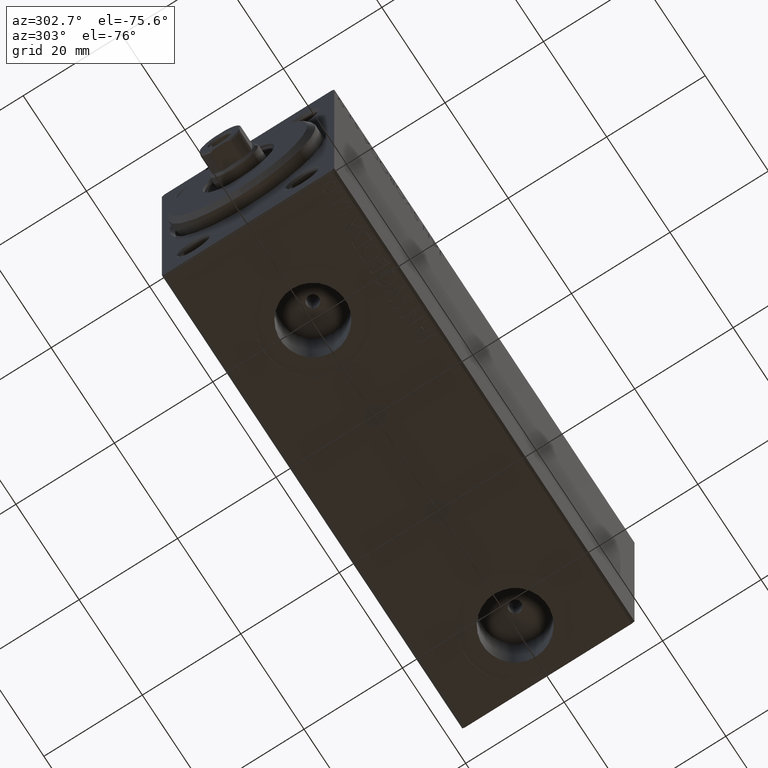
[diagram: clean part render]
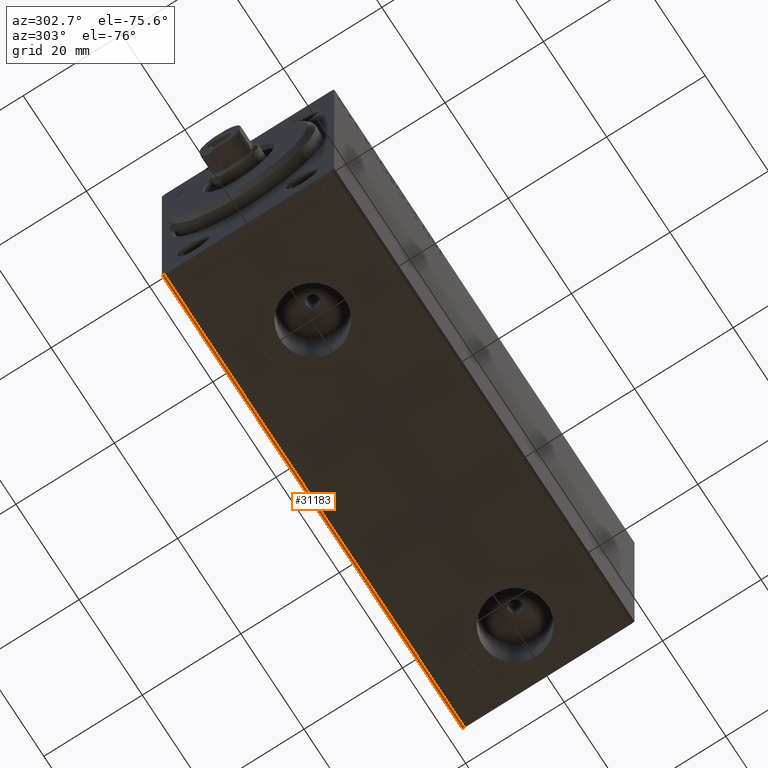
[diagram: same view with one face highlighted and labeled with its STEP entity id]
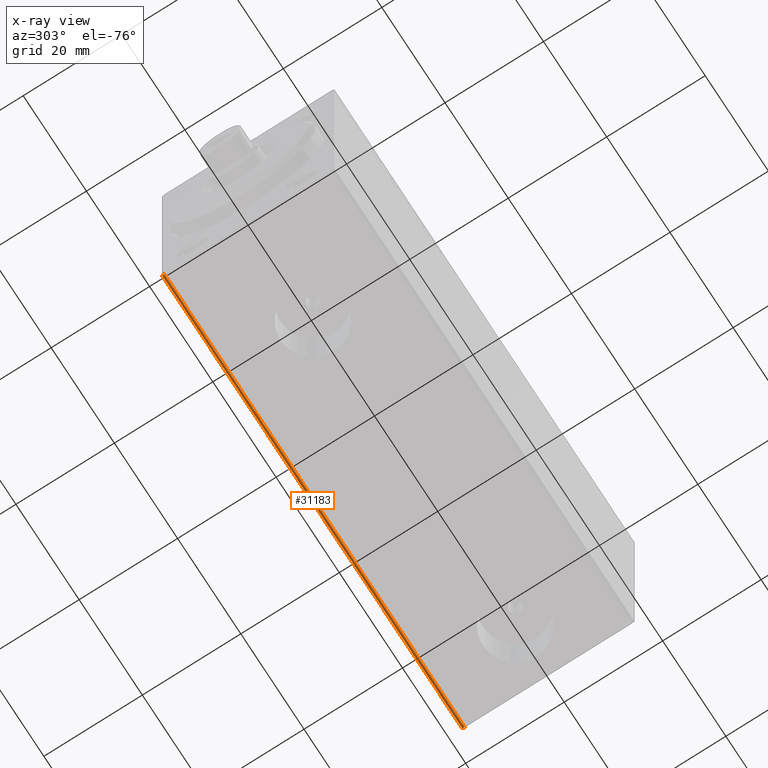
[diagram: x-ray of the same camera — body ghosted, the highlighted face saturated]
A machine part, auxiliary view. The second image highlights one B-rep face of the part: STEP entity #31183.
The next image is the same camera in x-ray: the body ghosted, the highlighted face saturated — about 0% of this face is hidden behind the body in this view.
In plain terms, the highlighted planar face has unit normal (0, -0.7071, 0.7071).
Its self-contained STEP definition (entity closure, byte-faithful):
#7930 = EDGE_CURVE ( 'NONE', #35850, #12055, #8069, .T. ) ;
#8052 = DIRECTION ( 'NONE',  ( -0.000000000000000000, 0.7071067811865474617, 0.7071067811865474617 ) ) ;
#8069 = LINE ( 'NONE', #31773, #34614 ) ;
#11121 = LINE ( 'NONE', #43101, #27494 ) ;
#12055 = VERTEX_POINT ( 'NONE', #40992 ) ;
#13494 = VECTOR ( 'NONE', #24605, 1000.000000000000114 ) ;
#14892 = VECTOR ( 'NONE', #8052, 1000.000000000000114 ) ;
#17368 = CARTESIAN_POINT ( 'NONE',  ( 0.000000000000000000, 17.50000000000000711, -26.99999999999999645 ) ) ;
#17476 = LINE ( 'NONE', #45547, #13494 ) ;
#18416 = DIRECTION ( 'NONE',  ( 1.000000000000000000, 0.000000000000000000, 0.000000000000000000 ) ) ;
#21017 = DIRECTION ( 'NONE',  ( -1.000000000000000000, 0.000000000000000000, 0.000000000000000000 ) ) ;
#21603 = VERTEX_POINT ( 'NONE', #39750 ) ;
#22278 = VERTEX_POINT ( 'NONE', #17368 ) ;
#22656 = DIRECTION ( 'NONE',  ( -1.000000000000000000, 0.000000000000000000, 0.000000000000000000 ) ) ;
#23027 = CARTESIAN_POINT ( 'NONE',  ( 0.000000000000000000, 16.99999999999999289, -27.50000000000001066 ) ) ;
#24605 = DIRECTION ( 'NONE',  ( 0.000000000000000000, -0.7071067811865474617, -0.7071067811865474617 ) ) ;
#26128 = DIRECTION ( 'NONE',  ( 0.000000000000000000, -0.7071067811865475727, 0.7071067811865475727 ) ) ;
#27494 = VECTOR ( 'NONE', #21017, 1000.000000000000000 ) ;
#29811 = FACE_OUTER_BOUND ( 'NONE', #36838, .T. ) ;
#30268 = ORIENTED_EDGE ( 'NONE', *, *, #44407, .F. ) ;
#31183 = ADVANCED_FACE ( 'NONE', ( #29811 ), #40371, .F. ) ;
#31773 = CARTESIAN_POINT ( 'NONE',  ( 95.00000000000000000, 16.99999999999999289, -27.50000000000001066 ) ) ;
#34614 = VECTOR ( 'NONE', #18416, 1000.000000000000000 ) ;
#35850 = VERTEX_POINT ( 'NONE', #23027 ) ;
#36116 = LINE ( 'NONE', #39335, #14892 ) ;
#36298 = ORIENTED_EDGE ( 'NONE', *, *, #39003, .F. ) ;
#36579 = AXIS2_PLACEMENT_3D ( 'NONE', #39921, #26128, #22656 ) ;
#36838 = EDGE_LOOP ( 'NONE', ( #40498, #43682, #36298, #30268 ) ) ;
#39003 = EDGE_CURVE ( 'NONE', #22278, #35850, #17476, .T. ) ;
#39335 = CARTESIAN_POINT ( 'NONE',  ( 95.00000000000000000, 22.25000000000000355, -22.25000000000000355 ) ) ;
#39750 = CARTESIAN_POINT ( 'NONE',  ( 95.00000000000000000, 17.50000000000000711, -26.99999999999999645 ) ) ;
#39921 = CARTESIAN_POINT ( 'NONE',  ( 95.00000000000000000, 17.50000000000000711, -26.99999999999999645 ) ) ;
#40371 = PLANE ( 'NONE',  #36579 ) ;
#40498 = ORIENTED_EDGE ( 'NONE', *, *, #41561, .F. ) ;
#40992 = CARTESIAN_POINT ( 'NONE',  ( 95.00000000000000000, 16.99999999999999289, -27.50000000000001066 ) ) ;
#41561 = EDGE_CURVE ( 'NONE', #12055, #21603, #36116, .T. ) ;
#43101 = CARTESIAN_POINT ( 'NONE',  ( 95.00000000000000000, 17.50000000000000711, -26.99999999999999645 ) ) ;
#43682 = ORIENTED_EDGE ( 'NONE', *, *, #7930, .F. ) ;
#44407 = EDGE_CURVE ( 'NONE', #21603, #22278, #11121, .T. ) ;
#45547 = CARTESIAN_POINT ( 'NONE',  ( 0.000000000000000000, 17.50000000000000711, -26.99999999999999645 ) ) ;